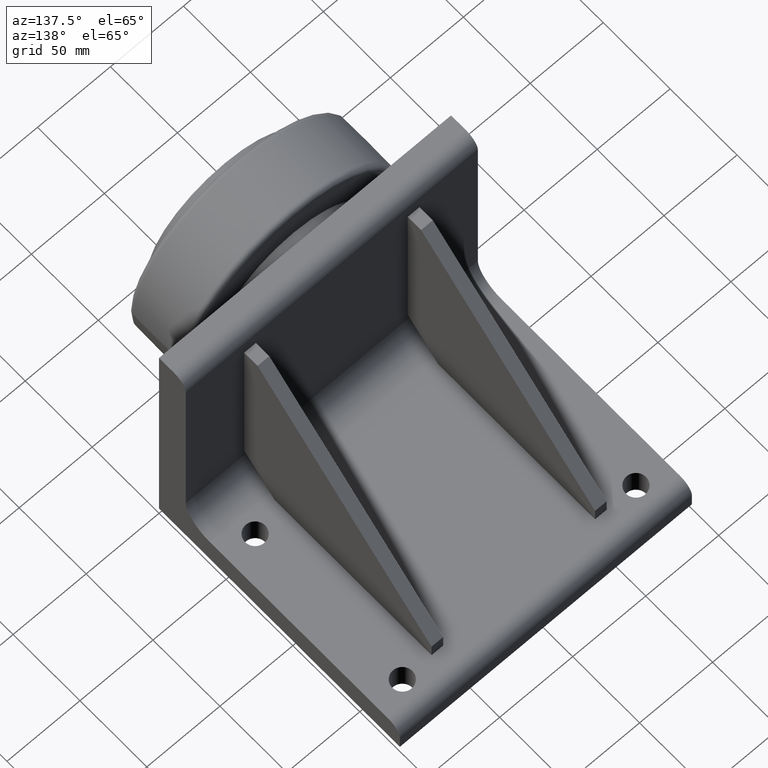
[diagram: clean part render]
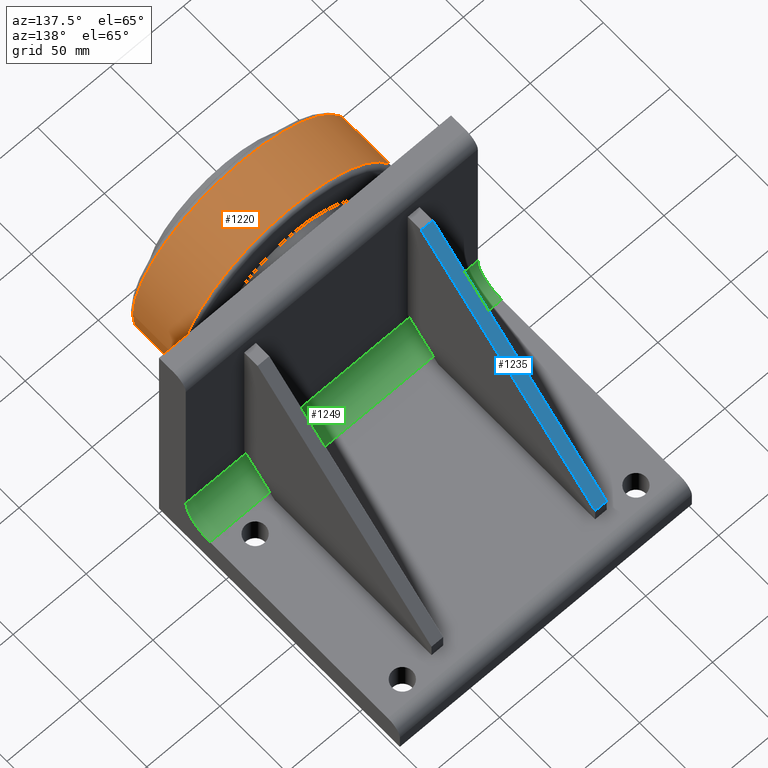
[diagram: same view with three faces highlighted in distinct colors, each labeled with its STEP entity id]
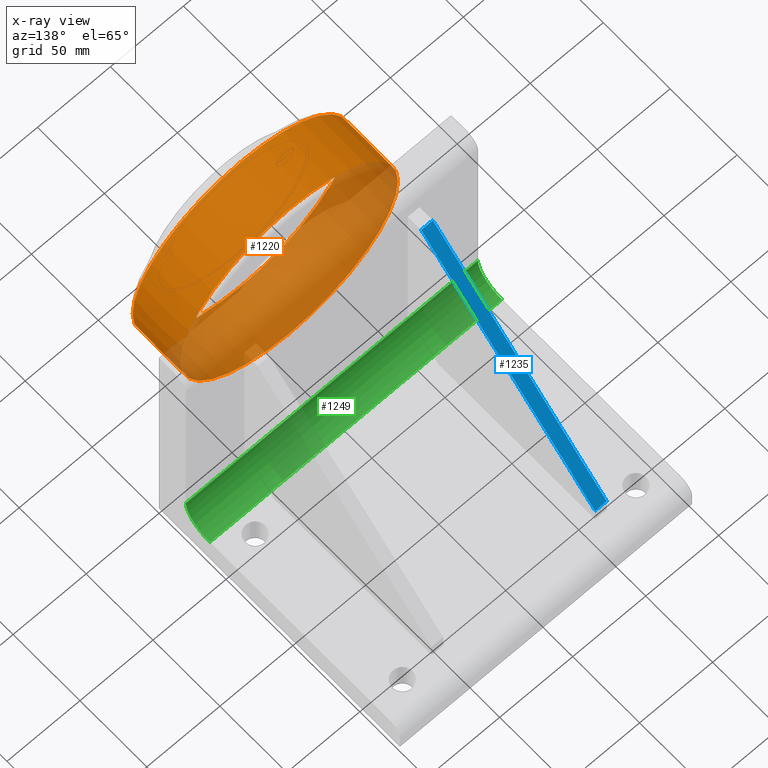
[diagram: x-ray of the same camera — body ghosted, the three highlighted faces saturated]
A machine part, auxiliary view with three faces highlighted in distinct colors.
The next image is the same camera in x-ray (body ghosted, the three faces saturated) — at least one of them is partly hidden behind the body in this view.
Their STEP definitions:

[orange] entity #1220 — the highlighted face is a freeform B-spline surface patch.
#15=(
BOUNDED_SURFACE()
B_SPLINE_SURFACE(2,2,((#1955,#1956,#1957,#1958,#1959,#1960,#1961,#1962,
#1963),(#1964,#1965,#1966,#1967,#1968,#1969,#1970,#1971,#1972),(#1973,#1974,
#1975,#1976,#1977,#1978,#1979,#1980,#1981)),.UNSPECIFIED.,.F.,.T.,.F.)
B_SPLINE_SURFACE_WITH_KNOTS((3,3),(3,2,2,2,3),(-0.0130264205048223,0.0109131367987505),
(-3.14159265358979,-1.5707963267949,0.,1.5707963267949,3.14159265358979),
 .UNSPECIFIED.)
GEOMETRIC_REPRESENTATION_ITEM()
RATIONAL_B_SPLINE_SURFACE(((1.,0.707106781186548,1.,0.707106781186548,1.,
0.707106781186548,1.,0.707106781186548,1.),(0.999928363054839,0.70705612621684,
0.999928363054839,0.70705612621684,0.999928363054839,0.70705612621684,0.999928363054839,
0.70705612621684,0.999928363054839),(1.,0.707106781186548,1.,0.707106781186548,
1.,0.707106781186548,1.,0.707106781186548,1.)))
REPRESENTATION_ITEM('')
SURFACE()
);
#93=CIRCLE('',#1336,74.4106784704044);
#94=CIRCLE('',#1337,74.4106784704044);
#96=CIRCLE('',#1339,1500.);
#97=CIRCLE('',#1340,74.3727360762318);
#98=CIRCLE('',#1341,74.3727360762318);
#148=FACE_OUTER_BOUND('',#217,.T.);
#217=EDGE_LOOP('',(#916,#917,#918,#919,#920,#921));
#542=VERTEX_POINT('',#1949);
#543=VERTEX_POINT('',#1951);
#544=VERTEX_POINT('',#1982);
#545=VERTEX_POINT('',#1984);
#682=EDGE_CURVE('',#542,#543,#93,.T.);
#683=EDGE_CURVE('',#543,#542,#94,.T.);
#685=EDGE_CURVE('',#542,#544,#96,.T.);
#686=EDGE_CURVE('',#545,#544,#97,.T.);
#687=EDGE_CURVE('',#544,#545,#98,.T.);
#916=ORIENTED_EDGE('',*,*,#683,.F.);
#917=ORIENTED_EDGE('',*,*,#682,.F.);
#918=ORIENTED_EDGE('',*,*,#685,.T.);
#919=ORIENTED_EDGE('',*,*,#686,.F.);
#920=ORIENTED_EDGE('',*,*,#687,.F.);
#921=ORIENTED_EDGE('',*,*,#685,.F.);
#1220=ADVANCED_FACE('',(#148),#15,.F.);
#1336=AXIS2_PLACEMENT_3D('',#1952,#1546,#1547);
#1337=AXIS2_PLACEMENT_3D('',#1953,#1548,#1549);
#1339=AXIS2_PLACEMENT_3D('',#1983,#1552,#1553);
#1340=AXIS2_PLACEMENT_3D('',#1985,#1554,#1555);
#1341=AXIS2_PLACEMENT_3D('',#1986,#1556,#1557);
#1546=DIRECTION('center_axis',(9.59457708555914E-18,-1.,-1.22464679914735E-16));
#1547=DIRECTION('ref_axis',(1.22460635382238E-16,-1.19361688128322E-16,
1.));
#1548=DIRECTION('center_axis',(9.59457708555914E-18,-1.,-1.22464679914735E-16));
#1549=DIRECTION('ref_axis',(1.22460635382238E-16,-1.19361688128322E-16,
1.));
#1552=DIRECTION('center_axis',(-2.38437159651041E-16,-1.22464679914735E-16,
1.));
#1553=DIRECTION('ref_axis',(1.,0.,2.38437159651041E-16));
#1554=DIRECTION('center_axis',(-9.59457708555914E-18,1.,1.22464679914735E-16));
#1555=DIRECTION('ref_axis',(1.22460635382238E-16,-1.19422582327715E-16,
1.));
#1556=DIRECTION('center_axis',(-9.59457708555914E-18,1.,1.22464679914735E-16));
#1557=DIRECTION('ref_axis',(1.22460635382238E-16,-1.19422582327715E-16,
1.));
#1949=CARTESIAN_POINT('',(174.410678470404,-47.6693802708119,120.));
#1951=CARTESIAN_POINT('',(100.,-47.6693802708119,45.5893215295955));
#1952=CARTESIAN_POINT('Origin',(100.,-47.6693802708119,120.));
#1953=CARTESIAN_POINT('Origin',(100.,-47.6693802708119,120.));
#1955=CARTESIAN_POINT('Ctrl Pts',(174.372736076232,-11.7609218436875,120.));
#1956=CARTESIAN_POINT('Ctrl Pts',(174.372736076232,-11.7609218436875,194.372736076231));
#1957=CARTESIAN_POINT('Ctrl Pts',(100.,-11.7609218436875,194.372736076232));
#1958=CARTESIAN_POINT('Ctrl Pts',(25.6272639237685,-11.7609218436875,194.372736076232));
#1959=CARTESIAN_POINT('Ctrl Pts',(25.6272639237684,-11.7609218436875,120.));
#1960=CARTESIAN_POINT('Ctrl Pts',(25.6272639237684,-11.7609218436874,45.6272639237685));
#1961=CARTESIAN_POINT('Ctrl Pts',(100.,-11.7609218436874,45.6272639237684));
#1962=CARTESIAN_POINT('Ctrl Pts',(174.372736076232,-11.7609218436874,45.6272639237684));
#1963=CARTESIAN_POINT('Ctrl Pts',(174.372736076232,-11.7609218436875,120.));
#1964=CARTESIAN_POINT('Ctrl Pts',(174.606625687154,-29.7149239653741,120.));
#1965=CARTESIAN_POINT('Ctrl Pts',(174.606625687154,-29.7149239653741,194.606625687154));
#1966=CARTESIAN_POINT('Ctrl Pts',(100.,-29.7149239653741,194.606625687154));
#1967=CARTESIAN_POINT('Ctrl Pts',(25.3933743128459,-29.7149239653741,194.606625687154));
#1968=CARTESIAN_POINT('Ctrl Pts',(25.3933743128459,-29.7149239653741,120.));
#1969=CARTESIAN_POINT('Ctrl Pts',(25.3933743128458,-29.7149239653741,45.3933743128459));
#1970=CARTESIAN_POINT('Ctrl Pts',(100.,-29.7149239653741,45.3933743128458));
#1971=CARTESIAN_POINT('Ctrl Pts',(174.606625687154,-29.7149239653741,45.3933743128458));
#1972=CARTESIAN_POINT('Ctrl Pts',(174.606625687154,-29.7149239653741,120.));
#1973=CARTESIAN_POINT('Ctrl Pts',(174.410678470404,-47.6693802708119,120.));
#1974=CARTESIAN_POINT('Ctrl Pts',(174.410678470404,-47.6693802708119,194.410678470404));
#1975=CARTESIAN_POINT('Ctrl Pts',(100.,-47.6693802708119,194.410678470404));
#1976=CARTESIAN_POINT('Ctrl Pts',(25.5893215295956,-47.6693802708119,194.410678470404));
#1977=CARTESIAN_POINT('Ctrl Pts',(25.5893215295955,-47.6693802708119,120.));
#1978=CARTESIAN_POINT('Ctrl Pts',(25.5893215295955,-47.6693802708119,45.5893215295955));
#1979=CARTESIAN_POINT('Ctrl Pts',(100.,-47.6693802708119,45.5893215295955));
#1980=CARTESIAN_POINT('Ctrl Pts',(174.410678470404,-47.6693802708119,45.5893215295955));
#1981=CARTESIAN_POINT('Ctrl Pts',(174.410678470404,-47.6693802708119,120.));
#1982=CARTESIAN_POINT('',(174.372736076232,-11.7609218436874,120.));
#1983=CARTESIAN_POINT('Origin',(-1325.5,-31.2999999999998,120.));
#1984=CARTESIAN_POINT('',(100.,-11.7609218436874,45.6272639237681));
#1985=CARTESIAN_POINT('Origin',(100.,-11.7609218436874,120.));
#1986=CARTESIAN_POINT('Origin',(100.,-11.7609218436874,120.));

[blue] entity #1235 — the highlighted planar face has unit normal (0, 0.7071, 0.7071).
#163=FACE_OUTER_BOUND('',#233,.T.);
#233=EDGE_LOOP('',(#990,#991,#992,#993));
#329=LINE('',#2060,#440);
#332=LINE('',#2066,#443);
#333=LINE('',#2068,#444);
#334=LINE('',#2069,#445);
#440=VECTOR('',#1627,10.);
#443=VECTOR('',#1632,10.);
#444=VECTOR('',#1633,10.);
#445=VECTOR('',#1634,10.);
#569=VERTEX_POINT('',#2057);
#570=VERTEX_POINT('',#2059);
#572=VERTEX_POINT('',#2065);
#573=VERTEX_POINT('',#2067);
#722=EDGE_CURVE('',#570,#569,#329,.T.);
#725=EDGE_CURVE('',#569,#572,#332,.T.);
#726=EDGE_CURVE('',#573,#572,#333,.T.);
#727=EDGE_CURVE('',#570,#573,#334,.T.);
#990=ORIENTED_EDGE('',*,*,#725,.T.);
#991=ORIENTED_EDGE('',*,*,#726,.F.);
#992=ORIENTED_EDGE('',*,*,#727,.F.);
#993=ORIENTED_EDGE('',*,*,#722,.T.);
#1178=PLANE('',#1363);
#1235=ADVANCED_FACE('',(#163),#1178,.T.);
#1363=AXIS2_PLACEMENT_3D('',#2064,#1630,#1631);
#1627=DIRECTION('',(-1.,-1.85325733937074E-46,8.16594296420187E-32));
#1630=DIRECTION('center_axis',(5.77419364476971E-32,0.707106781186547,0.707106781186548));
#1631=DIRECTION('ref_axis',(1.,1.85325733937074E-46,-8.16594296420187E-32));
#1632=DIRECTION('',(5.77419364476973E-32,-0.707106781186548,0.707106781186547));
#1633=DIRECTION('',(-1.,-1.85325733937074E-46,8.16594296420187E-32));
#1634=DIRECTION('',(5.77419364476973E-32,-0.707106781186548,0.707106781186547));
#2057=CARTESIAN_POINT('',(40.,160.,30.));
#2059=CARTESIAN_POINT('',(48.,160.,30.));
#2060=CARTESIAN_POINT('',(48.,160.,30.));
#2064=CARTESIAN_POINT('Origin',(48.,160.,30.));
#2065=CARTESIAN_POINT('',(40.,29.9999999999999,160.));
#2066=CARTESIAN_POINT('',(40.,160.,30.));
#2067=CARTESIAN_POINT('',(48.,29.9999999999999,160.));
#2068=CARTESIAN_POINT('',(48.,29.9999999999999,160.));
#2069=CARTESIAN_POINT('',(48.,160.,30.));

[green] entity #1249 — the highlighted cylindrical surface (edge-blend (fillet) strip) has radius 18 mm, axis along (1, 0, 0).
#41=CYLINDRICAL_SURFACE('',#1394,18.);
#120=CIRCLE('',#1389,18.);
#123=CIRCLE('',#1395,18.);
#177=FACE_OUTER_BOUND('',#248,.T.);
#248=EDGE_LOOP('',(#1060,#1061,#1062,#1063));
#362=LINE('',#2159,#473);
#363=LINE('',#2162,#474);
#473=VECTOR('',#1724,10.);
#474=VECTOR('',#1727,10.);
#596=VERTEX_POINT('',#2136);
#597=VERTEX_POINT('',#2138);
#604=VERTEX_POINT('',#2158);
#605=VERTEX_POINT('',#2160);
#762=EDGE_CURVE('',#597,#596,#120,.T.);
#772=EDGE_CURVE('',#596,#604,#362,.T.);
#773=EDGE_CURVE('',#604,#605,#123,.T.);
#774=EDGE_CURVE('',#605,#597,#363,.T.);
#1060=ORIENTED_EDGE('',*,*,#762,.T.);
#1061=ORIENTED_EDGE('',*,*,#772,.T.);
#1062=ORIENTED_EDGE('',*,*,#773,.T.);
#1063=ORIENTED_EDGE('',*,*,#774,.T.);
#1249=ADVANCED_FACE('',(#177),#41,.F.);
#1389=AXIS2_PLACEMENT_3D('',#2139,#1705,#1706);
#1394=AXIS2_PLACEMENT_3D('',#2157,#1722,#1723);
#1395=AXIS2_PLACEMENT_3D('',#2161,#1725,#1726);
#1705=DIRECTION('center_axis',(-1.,0.,0.));
#1706=DIRECTION('ref_axis',(0.,-0.707106781186547,-0.707106781186548));
#1722=DIRECTION('center_axis',(1.,0.,0.));
#1723=DIRECTION('ref_axis',(0.,-0.707106781186547,-0.707106781186548));
#1724=DIRECTION('',(1.,0.,0.));
#1725=DIRECTION('center_axis',(1.,0.,0.));
#1726=DIRECTION('ref_axis',(0.,-0.707106781186547,-0.707106781186548));
#1727=DIRECTION('',(-1.,0.,0.));
#2136=CARTESIAN_POINT('',(0.,20.,38.));
#2138=CARTESIAN_POINT('',(0.,38.,20.));
#2139=CARTESIAN_POINT('Origin',(0.,38.,38.));
#2157=CARTESIAN_POINT('Origin',(0.,38.,38.));
#2158=CARTESIAN_POINT('',(200.,20.,38.));
#2159=CARTESIAN_POINT('',(0.,20.,38.));
#2160=CARTESIAN_POINT('',(200.,38.,20.));
#2161=CARTESIAN_POINT('Origin',(200.,38.,38.));
#2162=CARTESIAN_POINT('',(0.,38.,20.));